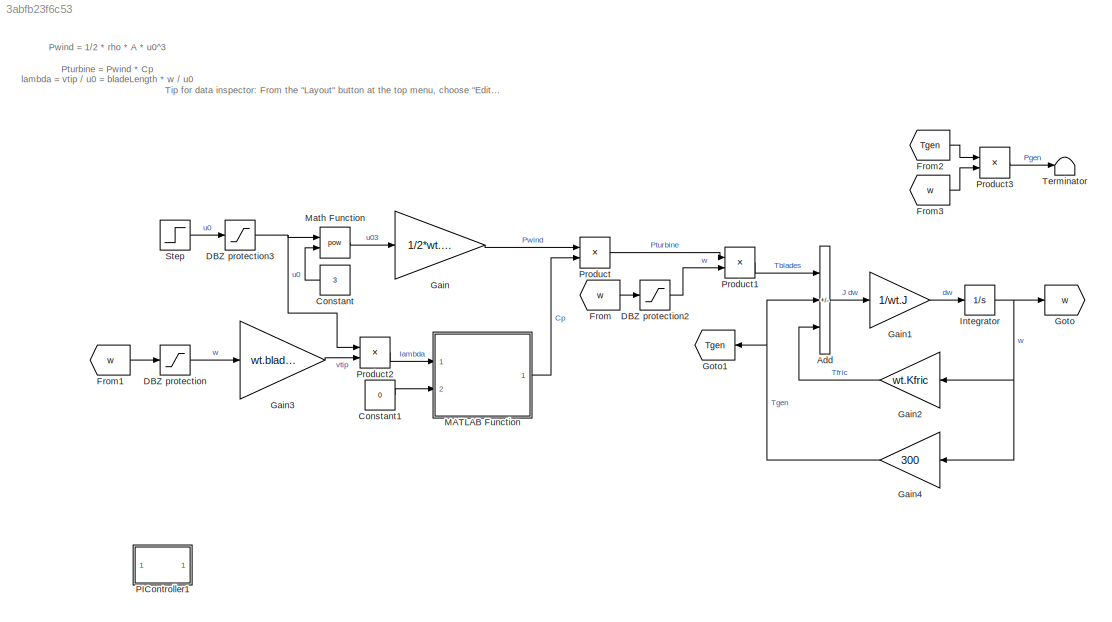
MODEL slx_3abfb23f6c53
KIND model
CONFIG AbsTol = auto
CONFIG EnableMultiTasking = off
CONFIG FixedStep = 0.5
CONFIG MaxStep = simu.maxStepSize
CONFIG MinStep = auto
CONFIG RelTol = 1e-3
CONFIG SampleTimeConstraint = Unconstrained
CONFIG SolverName = ode45
CONFIG StartTime = 0.0
CONFIG StopTime = simu.endTime
BLOCK [Sum] Add
  IconShape = rectangular
  Inputs = +--
  Ports = [3, 1]
BLOCK [Constant] Constant
  Value = 3
BLOCK [Constant] Constant1
  Value = 0
BLOCK [Saturate] DBZ protection
  LowerLimit = 0.001
  UpperLimit = inf
BLOCK [Saturate] DBZ protection2
  LowerLimit = 0.001
  UpperLimit = inf
BLOCK [Saturate] DBZ protection3
  LowerLimit = 0.001
  UpperLimit = inf
BLOCK [From] From
  GotoTag = w
BLOCK [From] From1
  GotoTag = w
BLOCK [From] From2
  GotoTag = Tgen
BLOCK [From] From3
  GotoTag = w
BLOCK [Gain] Gain
  Gain = 1/2*wt.rho*wt.A
BLOCK [Gain] Gain1
  Gain = 1/wt.J
BLOCK [Gain] Gain2
  Gain = wt.Kfric
BLOCK [Gain] Gain3
  Gain = wt.bladeLength
BLOCK [Gain] Gain4
  Gain = 300
BLOCK [Goto] Goto
  GotoTag = w
BLOCK [Goto] Goto1
  GotoTag = Tgen
BLOCK [Integrator] Integrator
  InitialCondition = wt.w_0
  Ports = [1, 1]
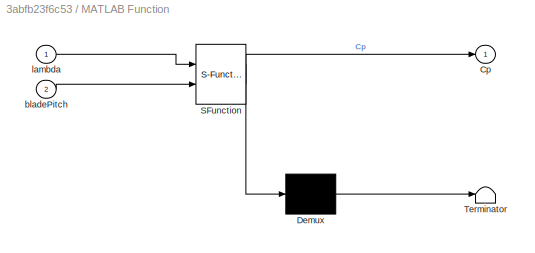
BLOCK [SubSystem] MATLAB Function
  ErrorFcn = Stateflow.Translate.translate
  PermitHierarchicalResolution = ExplicitOnly
  Ports = [2, 1]
  RequestExecContextInheritance = off
  SFBlockType = MATLAB Function
  TreatAsAtomicUnit = on
BLOCK [Demux] MATLAB Function/ Demux 
  Outputs = 1
  Ports = [1, 1]
BLOCK [S-Function] MATLAB Function/ SFunction 
  EnableBusSupport = off
  FunctionName = sf_sfun
  PortCounts = [2 2]
  Ports = [2, 2]
  SFcnIsStateOwnerBlock = off
  SFunctionDeploymentMode = off
  Tag = Stateflow S-Function 2
BLOCK [Terminator] MATLAB Function/ Terminator 
BLOCK [Outport] MATLAB Function/Cp
BLOCK [Inport] MATLAB Function/bladePitch
  Port = 2
BLOCK [Inport] MATLAB Function/lambda
BLOCK [Math] Math Function
  Operator = pow
  Ports = [2, 1]
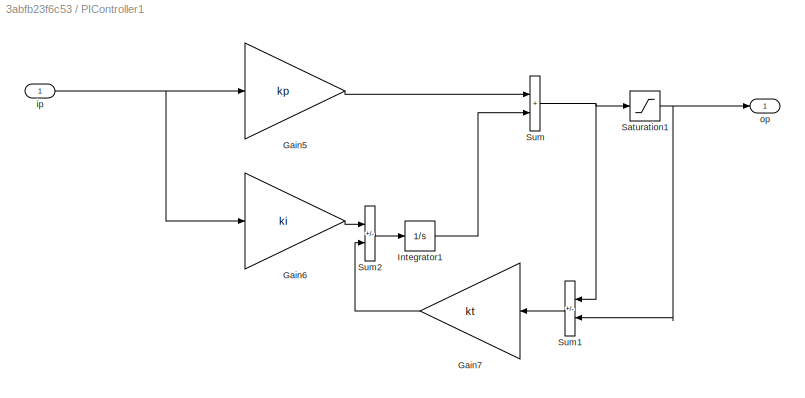
BLOCK [SubSystem] PIController1
  Ports = [1, 1]
  RequestExecContextInheritance = off
BLOCK [Gain] PIController1/Gain5
  Gain = kp
BLOCK [Gain] PIController1/Gain6
  Gain = ki
BLOCK [Gain] PIController1/Gain7
  Gain = kt
BLOCK [Integrator] PIController1/Integrator1
  InitialCondition = int_0
  Ports = [1, 1]
BLOCK [Saturate] PIController1/Saturation1
  LowerLimit = lowerLimit
  UpperLimit = upperLimit
BLOCK [Sum] PIController1/Sum
  IconShape = rectangular
  Ports = [2, 1]
BLOCK [Sum] PIController1/Sum1
  IconShape = rectangular
  Inputs = +-
  Ports = [2, 1]
BLOCK [Sum] PIController1/Sum2
  IconShape = rectangular
  Inputs = +-
  Ports = [2, 1]
BLOCK [Inport] PIController1/ip
BLOCK [Outport] PIController1/op
BLOCK [Product] Product
  Ports = [2, 1]
BLOCK [Product] Product1
  Inputs = */
  Ports = [2, 1]
BLOCK [Product] Product2
  Inputs = /*
  Ports = [2, 1]
BLOCK [Product] Product3
  Ports = [2, 1]
BLOCK [Step] Step
  After = 7
  Before = 5
  SampleTime = 0
  Time = 5
BLOCK [Terminator] Terminator
ANNOTATION (root): Pwind = 1/2 * rho * A * u0^3 Pturbine = Pwind * Cp lambda = vtip / u0 = bladeLength * w / u0 Tblades - Tgen - Tfric = J dw/dt Tfric = Kfric*w P = T w ---> T = P/w
ANNOTATION (root): Tip for data inspector: From the "Layout" button at the top menu, choose "Edit View" from the bottom, and drag "Time Plot" to the desired viewing position.
LINE Add:1 -> Gain1:1
LINE Constant1:1 -> MATLAB Function:2
LINE Constant:1 -> Math Function:2
LINE DBZ protection2:1 -> Product1:2
NET DBZ protection3:1 -> Math Function:1, Product2:1
LINE DBZ protection:1 -> Gain3:1
LINE From1:1 -> DBZ protection:1
LINE From2:1 -> Product3:1
LINE From3:1 -> Product3:2
LINE From:1 -> DBZ protection2:1
LINE Gain1:1 -> Integrator:1
LINE Gain2:1 -> Add:3
LINE Gain3:1 -> Product2:2
NET Gain4:1 -> Add:2, Goto1:1
LINE Gain:1 -> Product:1
NET Integrator:1 -> Gain2:1, Gain4:1, Goto:1
LINE MATLAB Function:1 -> Product:2
LINE Math Function:1 -> Gain:1
LINE PIController1/Gain5:1 -> PIController1/Sum:1
LINE PIController1/Gain6:1 -> PIController1/Sum2:1
LINE PIController1/Gain7:1 -> PIController1/Sum2:2
LINE PIController1/Integrator1:1 -> PIController1/Sum:2
NET PIController1/Saturation1:1 -> PIController1/Sum1:2, PIController1/op:1
LINE PIController1/Sum1:1 -> PIController1/Gain7:1
LINE PIController1/Sum2:1 -> PIController1/Integrator1:1
NET PIController1/Sum:1 -> PIController1/Saturation1:1, PIController1/Sum1:1
NET PIController1/ip:1 -> PIController1/Gain5:1, PIController1/Gain6:1
LINE Product1:1 -> Add:1
LINE Product2:1 -> MATLAB Function:1
LINE Product3:1 -> Terminator:1
LINE Product:1 -> Product1:1
LINE Step:1 -> DBZ protection3:1
note: NET lines group one-source signal fan-out (src -> all destinations, sorted); 1:1 wires keep LINE
CHART MATLAB Function states=1 transitions=1
  STATE_LABEL 'eML_blk_kernel()'
  STATE_LABEL 'SCRIPT:\nfunction Cp = fcn(lambda,bladePitch)\n\n% https://www.mathworks.com/help/physmod/sps/powersys/ref/windturbine.html\n\nc = [...\n    0.5176 ...\n    116 ...\n    0.4 ...\n    5 ...\n    21 ...\n    0.0068];\n\nlambdaai = 1/( 1/(lambda+0.08*bladePitch) - 0.035/(bladePitch^3+1) );\n\nCp = c(1)*(c(2)/lambdaai-c(3)*bladePitch-c(4))*exp(-c(5)/lambdaai) + c(6)*lambda;'
CHART  states=0 transitions=0
